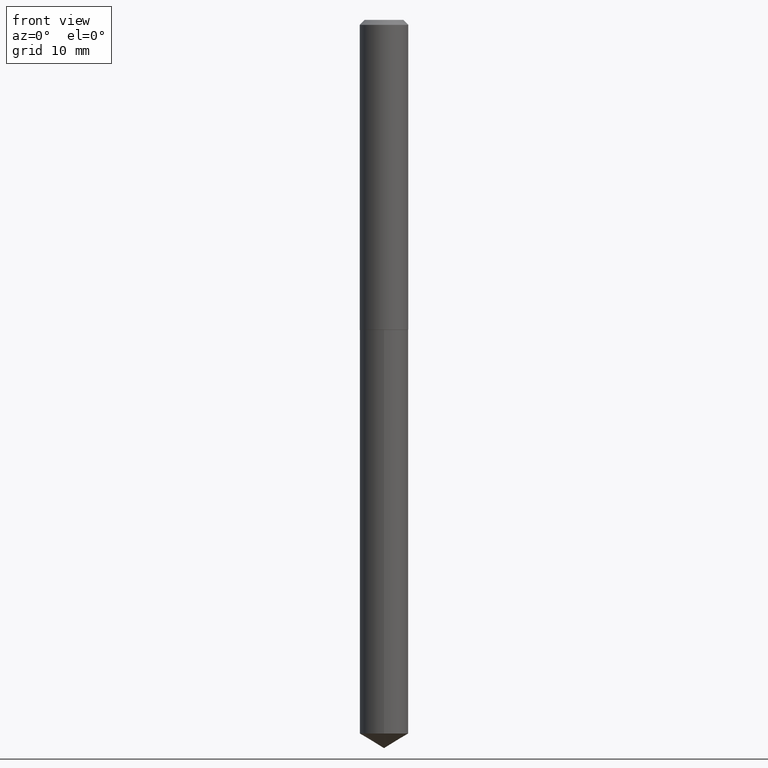
[diagram: clean part render]
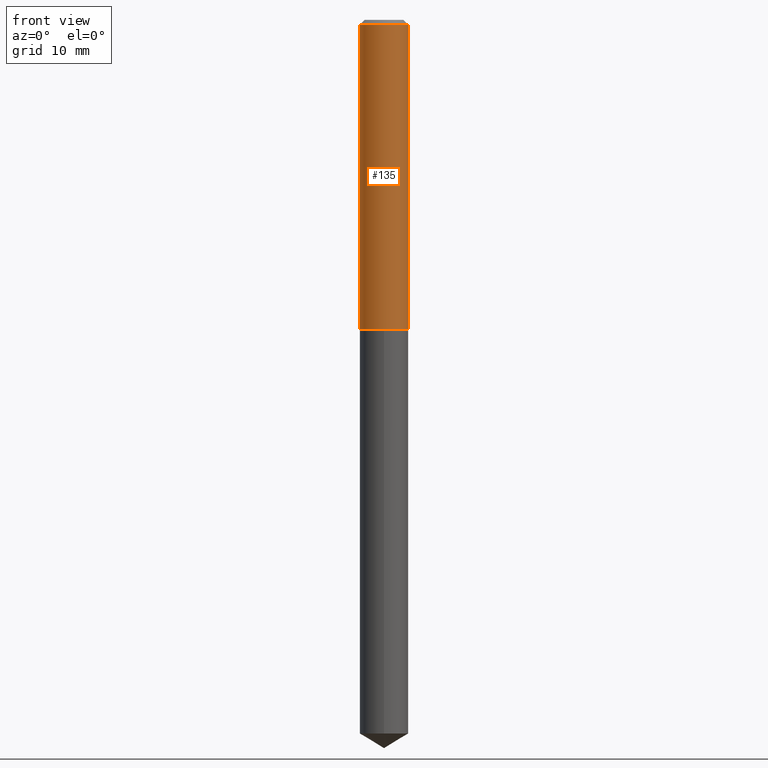
[diagram: same view with one face highlighted and labeled with its STEP entity id]
A machine part, front view. The second image highlights one B-rep face of the part: STEP entity #135.
In plain terms, the highlighted cylindrical surface (edge-blend (fillet) strip) has radius 3.9002 mm, axis along (-0, 0, 1).
Its self-contained STEP definition (entity closure, byte-faithful):
#4 = CARTESIAN_POINT ( 'NONE',  ( -0.1535500000000002419, -5.752614201506816077E-15, -1.960100000000000398 ) ) ;
#15 = LINE ( 'NONE', #255, #97 ) ;
#35 = FACE_OUTER_BOUND ( 'NONE', #346, .T. ) ;
#39 = DIRECTION ( 'NONE',  ( -2.445468806185136597E-29, 3.491481338843145583E-15, 1.000000000000000000 ) ) ;
#73 = CARTESIAN_POINT ( 'NONE',  ( -0.1535499999999999921, -2.385342311293014220E-15, -0.03125000000000022204 ) ) ;
#74 = DIRECTION ( 'NONE',  ( -2.445468806185136877E-29, 3.491481338843145188E-15, 1.000000000000000000 ) ) ;
#78 = ORIENTED_EDGE ( 'NONE', *, *, #319, .T. ) ;
#94 = LINE ( 'NONE', #223, #287 ) ;
#97 = VECTOR ( 'NONE', #229, 39.37007874015748143 ) ;
#99 = CARTESIAN_POINT ( 'NONE',  ( 4.793363407003487478E-29, -6.843652572266451236E-15, -1.960100000000000398 ) ) ;
#116 = AXIS2_PLACEMENT_3D ( 'NONE', #312, #39, #193 ) ;
#135 = ADVANCED_FACE ( 'NONE', ( #35 ), #217, .T. ) ;
#158 = VERTEX_POINT ( 'NONE', #4 ) ;
#163 = CARTESIAN_POINT ( 'NONE',  ( 0.1535500000000002419, -7.915886491425178171E-15, -1.960100000000000398 ) ) ;
#180 = AXIS2_PLACEMENT_3D ( 'NONE', #99, #228, #342 ) ;
#192 = CIRCLE ( 'NONE', #116, 0.1535499999999999921 ) ;
#193 = DIRECTION ( 'NONE',  ( 1.000000000000000000, -6.982962677686267499E-15, 0.000000000000000000 ) ) ;
#194 = CARTESIAN_POINT ( 'NONE',  ( 0.1535499999999999921, -1.181342710997575444E-15, -0.03125000000000022204 ) ) ;
#217 = CYLINDRICAL_SURFACE ( 'NONE', #335, 0.1535500000000001031 ) ;
#221 = ORIENTED_EDGE ( 'NONE', *, *, #306, .F. ) ;
#223 = CARTESIAN_POINT ( 'NONE',  ( -0.1535500000000001031, 1.091038370759634568E-15, -7.553024831086413478E-30 ) ) ;
#227 = DIRECTION ( 'NONE',  ( -2.445468806185136597E-29, 3.491481338843145583E-15, 1.000000000000000000 ) ) ;
#228 = DIRECTION ( 'NONE',  ( -2.445468806185136597E-29, 3.491481338843145583E-15, 1.000000000000000000 ) ) ;
#229 = DIRECTION ( 'NONE',  ( -2.445468806185136877E-29, 3.491481338843145188E-15, 1.000000000000000000 ) ) ;
#250 = CARTESIAN_POINT ( 'NONE',  ( 0.000000000000000000, 0.000000000000000000, 0.000000000000000000 ) ) ;
#252 = ORIENTED_EDGE ( 'NONE', *, *, #279, .F. ) ;
#255 = CARTESIAN_POINT ( 'NONE',  ( 0.1535500000000001031, -1.072233919158727132E-15, 7.487369439234664785E-30 ) ) ;
#269 = ORIENTED_EDGE ( 'NONE', *, *, #372, .T. ) ;
#279 = EDGE_CURVE ( 'NONE', #158, #382, #94, .T. ) ;
#287 = VECTOR ( 'NONE', #74, 39.37007874015748143 ) ;
#291 = VERTEX_POINT ( 'NONE', #163 ) ;
#306 = EDGE_CURVE ( 'NONE', #382, #385, #192, .T. ) ;
#312 = CARTESIAN_POINT ( 'NONE',  ( 7.642090019328606165E-31, -1.091087918388490760E-16, -0.03125000000000022204 ) ) ;
#319 = EDGE_CURVE ( 'NONE', #291, #385, #15, .T. ) ;
#332 = CIRCLE ( 'NONE', #180, 0.1535500000000002419 ) ;
#335 = AXIS2_PLACEMENT_3D ( 'NONE', #250, #227, #364 ) ;
#342 = DIRECTION ( 'NONE',  ( 1.000000000000000000, -6.982962677686264344E-15, 0.000000000000000000 ) ) ;
#346 = EDGE_LOOP ( 'NONE', ( #252, #269, #78, #221 ) ) ;
#364 = DIRECTION ( 'NONE',  ( 1.000000000000000000, -6.982962677686267499E-15, 4.876176775795935793E-29 ) ) ;
#372 = EDGE_CURVE ( 'NONE', #158, #291, #332, .T. ) ;
#382 = VERTEX_POINT ( 'NONE', #73 ) ;
#385 = VERTEX_POINT ( 'NONE', #194 ) ;